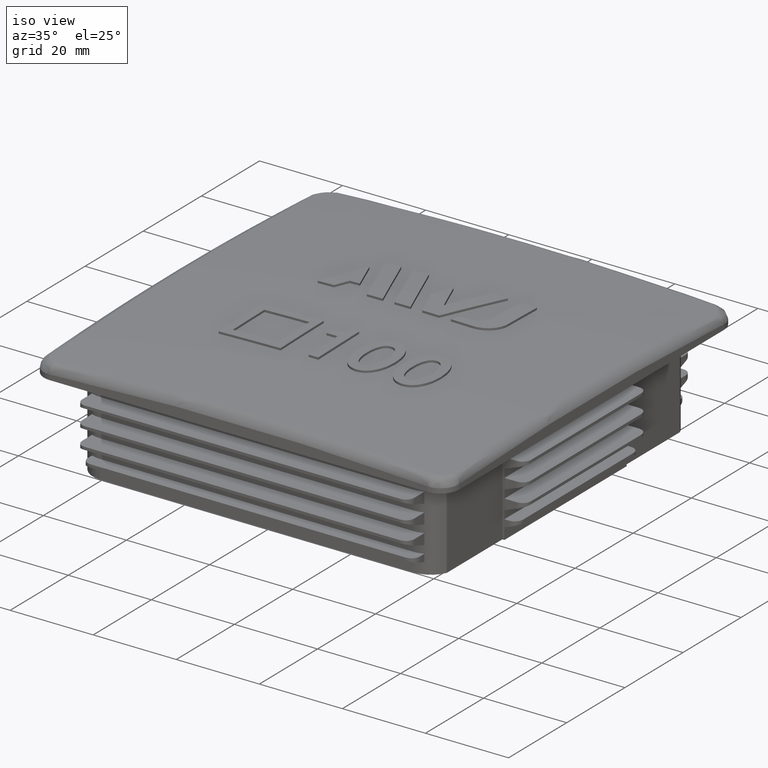
[diagram: clean part render]
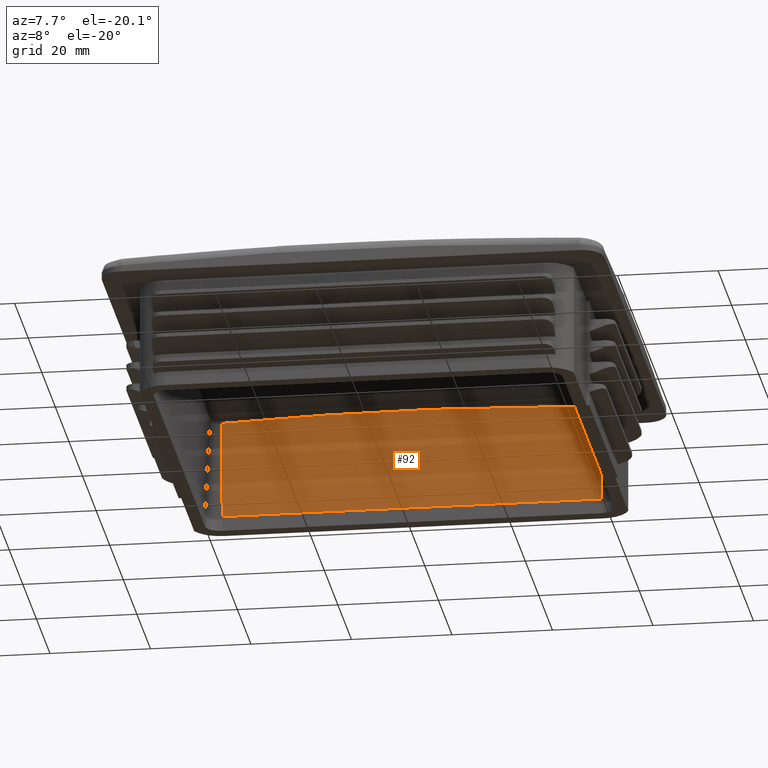
[diagram: tour spotlight — one face highlighted and labeled with its STEP entity id]
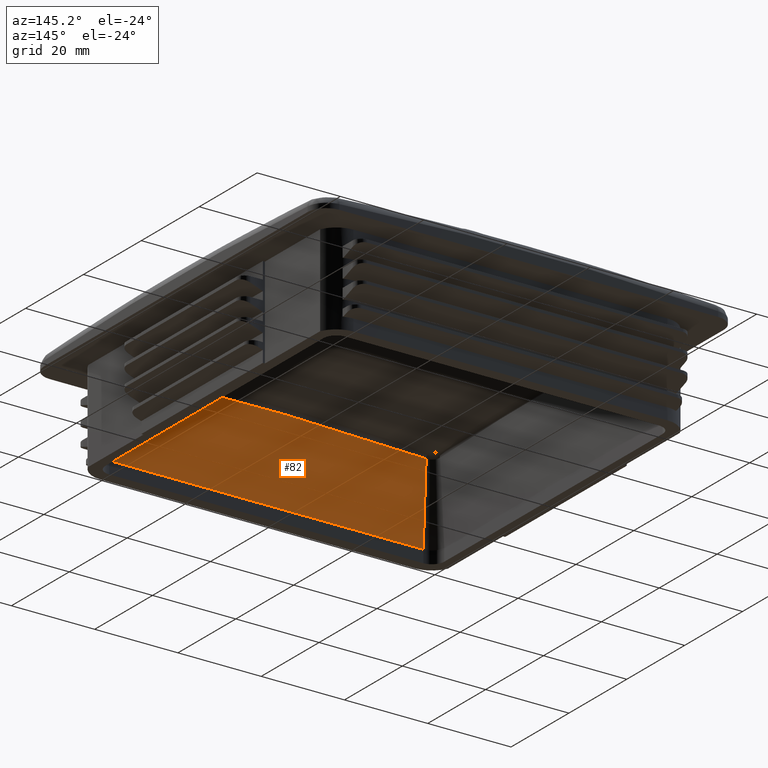
[diagram: tour spotlight — one face highlighted and labeled with its STEP entity id]
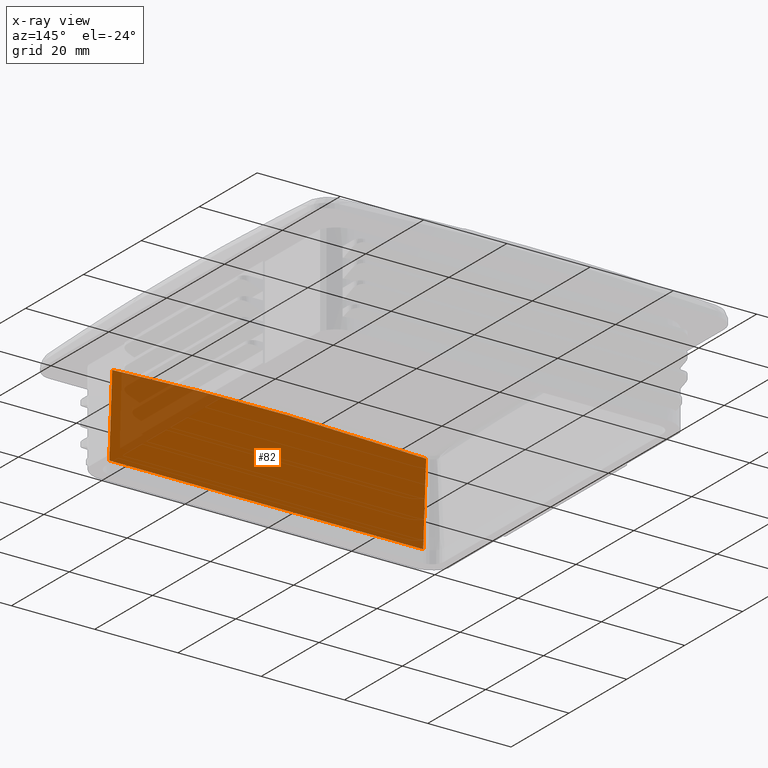
[diagram: x-ray of the same camera — body ghosted, this tour face saturated]
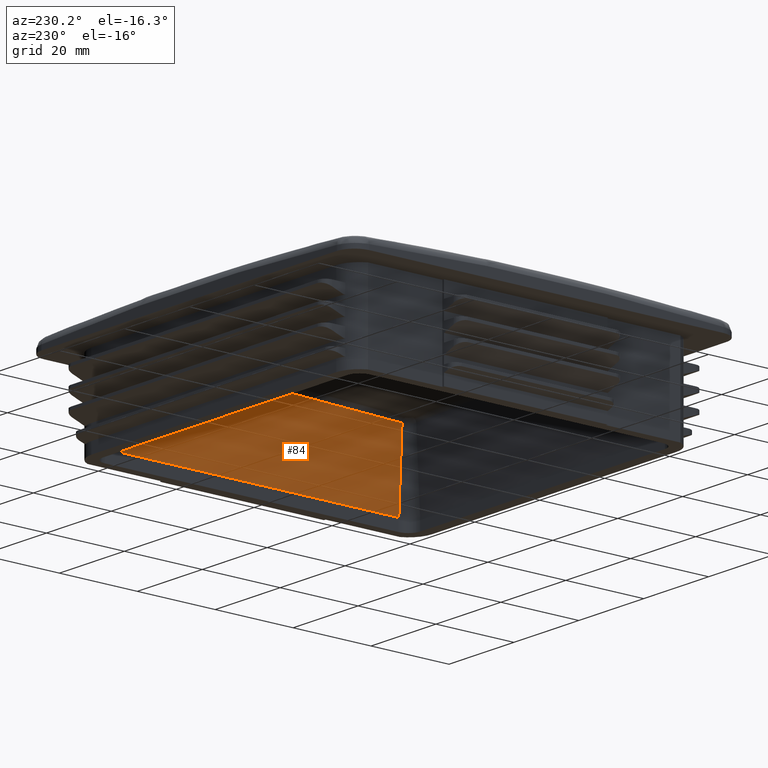
[diagram: tour spotlight — one face highlighted and labeled with its STEP entity id]
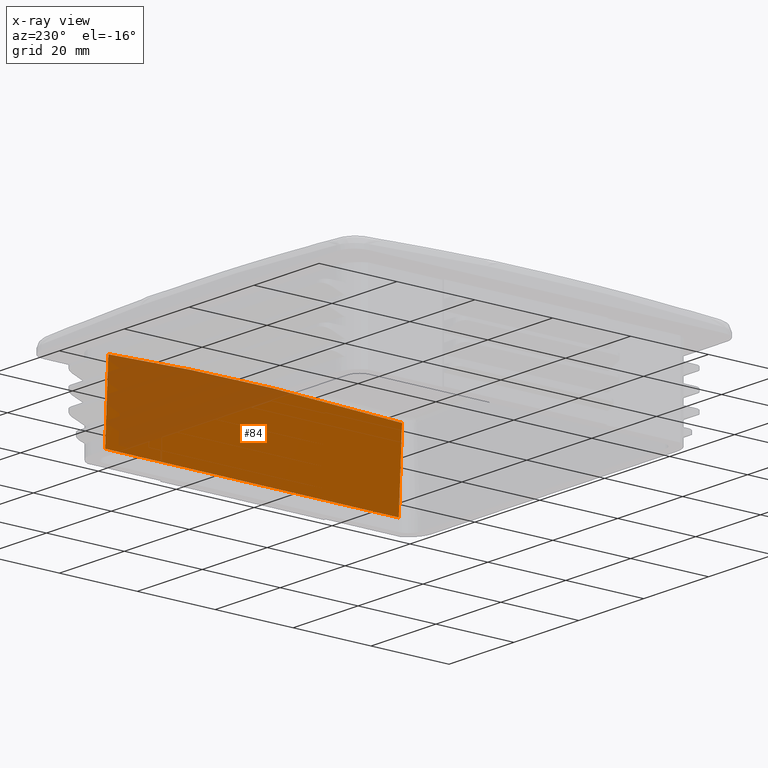
[diagram: x-ray of the same camera — body ghosted, this tour face saturated]
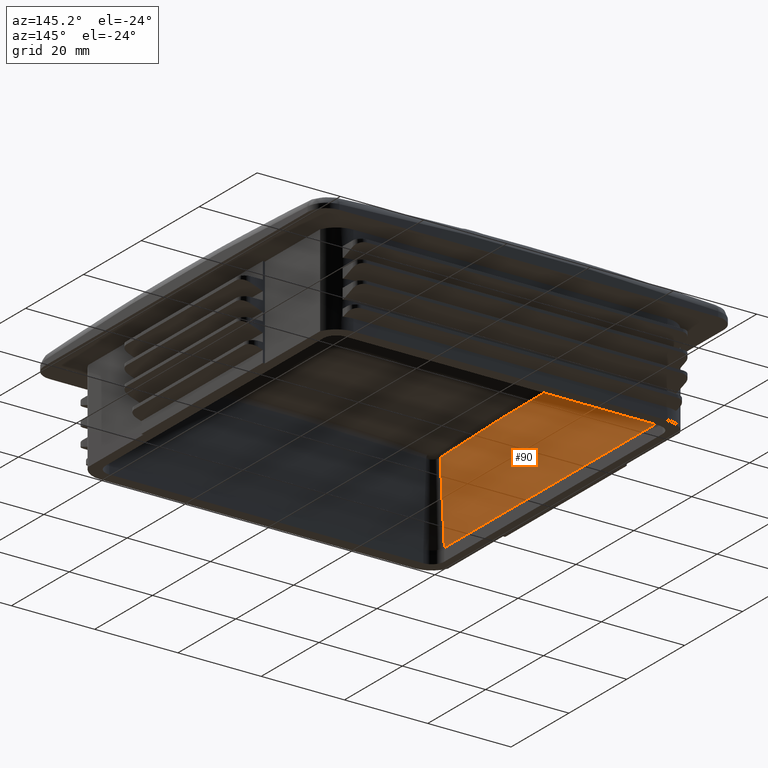
[diagram: tour spotlight — one face highlighted and labeled with its STEP entity id]
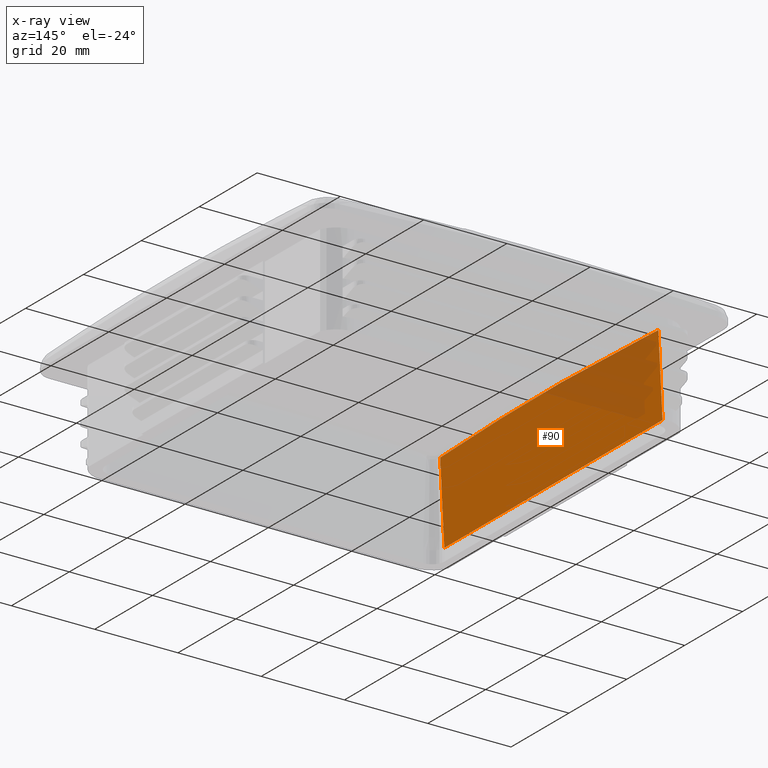
[diagram: x-ray of the same camera — body ghosted, this tour face saturated]
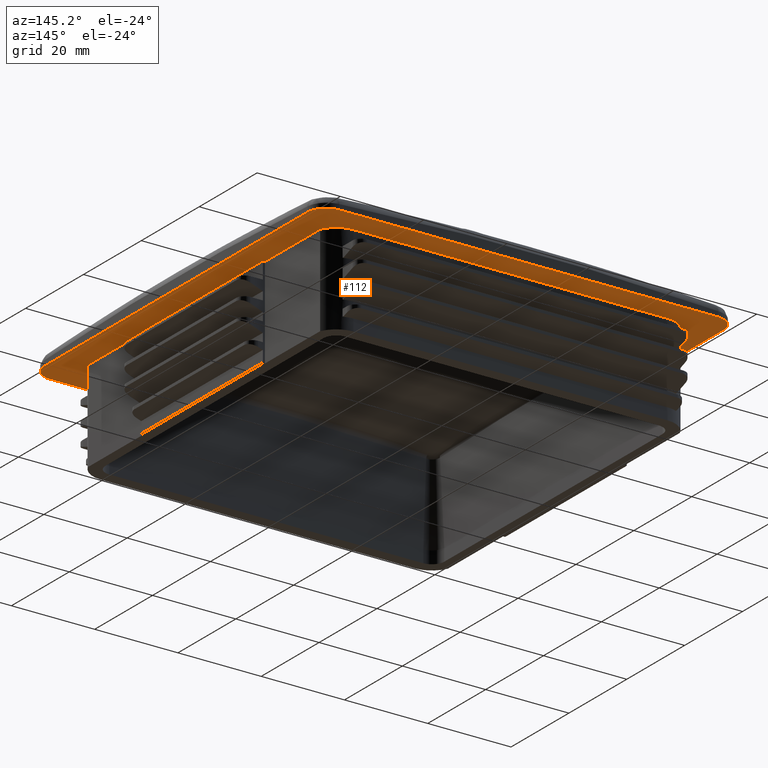
[diagram: tour spotlight — one face highlighted and labeled with its STEP entity id]
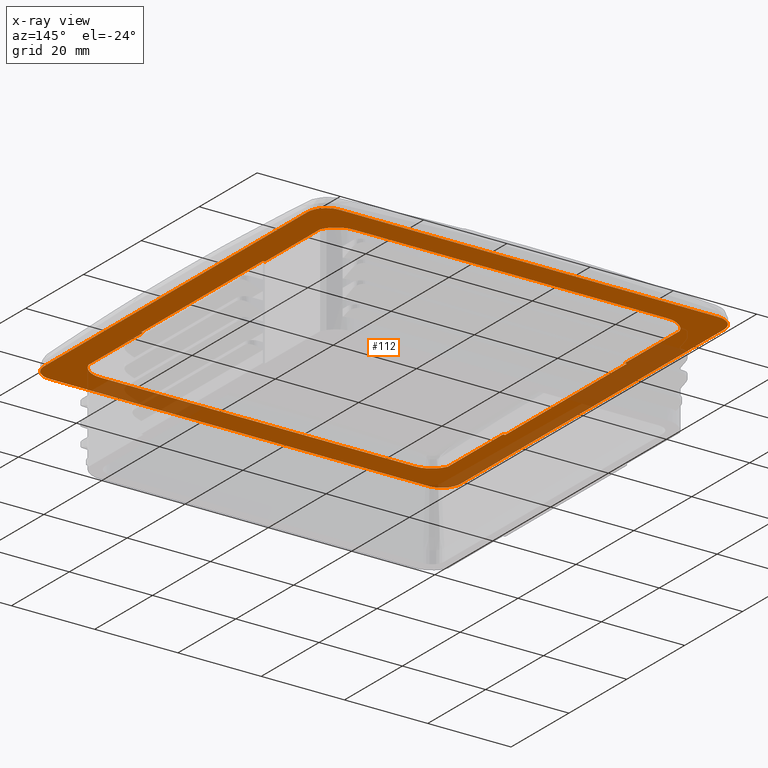
[diagram: x-ray of the same camera — body ghosted, this tour face saturated]
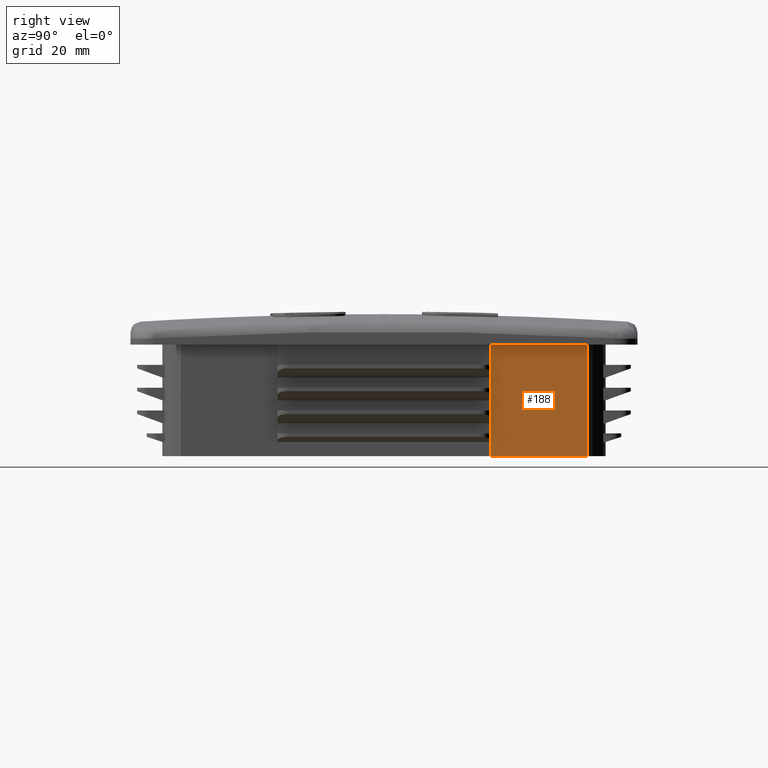
[diagram: tour spotlight — one face highlighted and labeled with its STEP entity id]
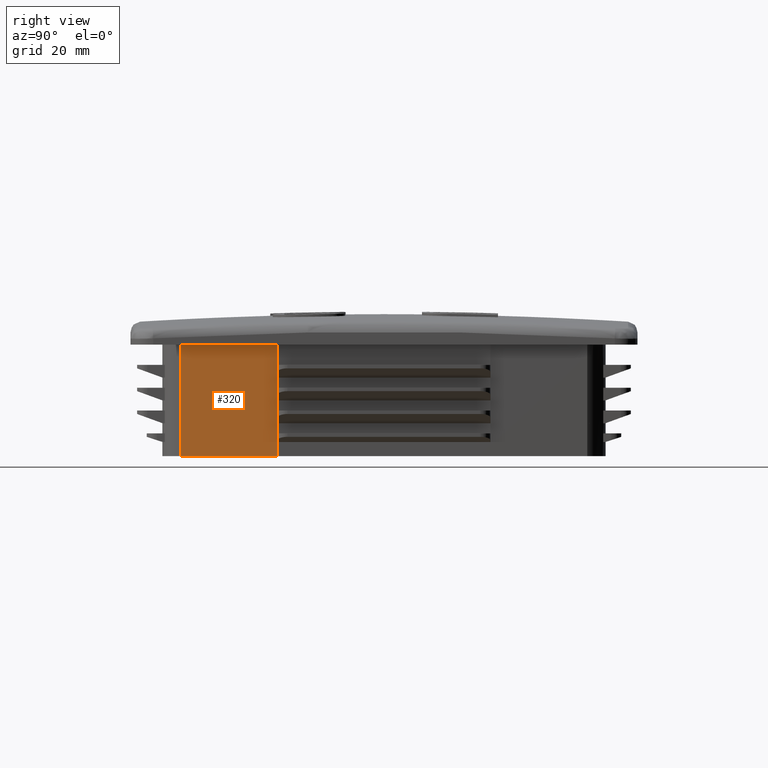
[diagram: tour spotlight — one face highlighted and labeled with its STEP entity id]
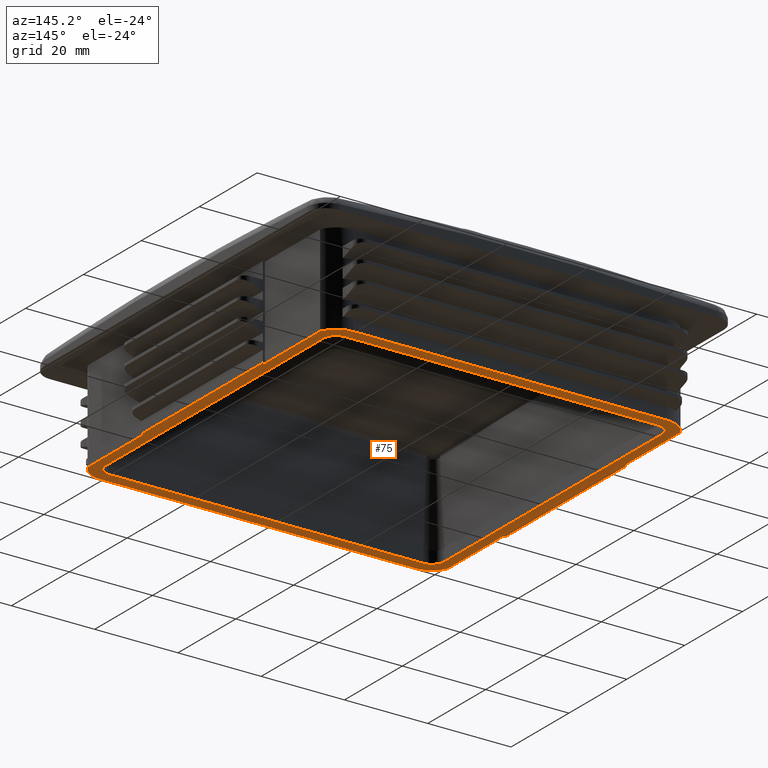
[diagram: tour spotlight — one face highlighted and labeled with its STEP entity id]
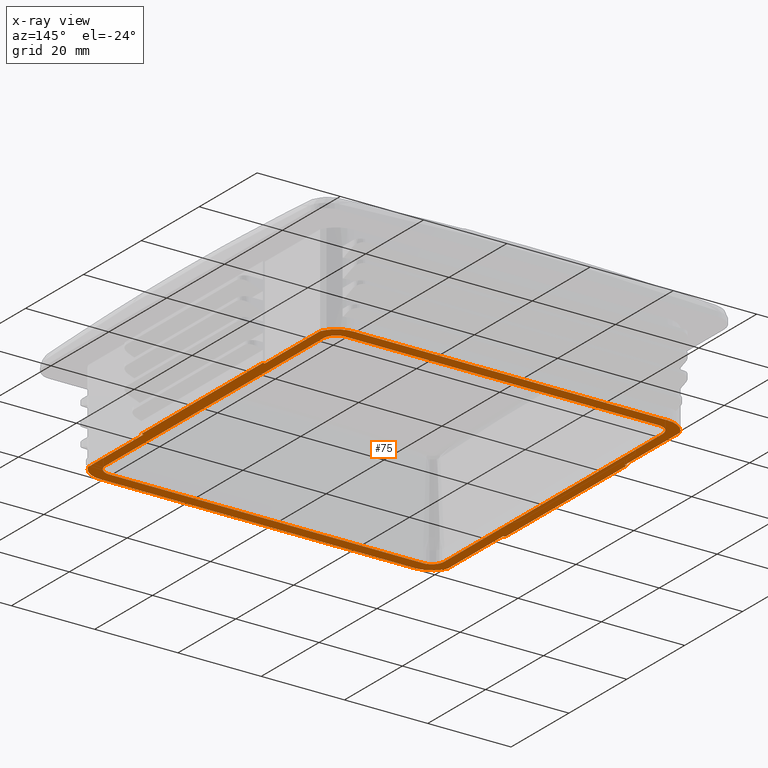
[diagram: x-ray of the same camera — body ghosted, this tour face saturated]
A machine part: a face-by-face anatomy tour. The part has 247 B-rep faces; the first image is the clean iso view, then the 8 largest visible faces are spotlighted one at a time (largest first), each with its STEP entity span.

Face 1 — auxiliary view, entity #92. In plain terms, the highlighted planar face has unit normal (0, 0.9986, 0.0523).
Definition (entity closure, byte-faithful):
#92 = ADVANCED_FACE( '', ( #359 ), #360, .F. );
#359 = FACE_OUTER_BOUND( '', #1723, .T. );
#360 = PLANE( '', #1724 );
#1723 = EDGE_LOOP( '', ( #3525, #3526, #3527, #3528 ) );
#1724 = AXIS2_PLACEMENT_3D( '', #3529, #3530, #3531 );
#3525 = ORIENTED_EDGE( '', *, *, #5481, .F. );
#3526 = ORIENTED_EDGE( '', *, *, #5484, .T. );
#3527 = ORIENTED_EDGE( '', *, *, #5488, .T. );
#3528 = ORIENTED_EDGE( '', *, *, #5489, .F. );
#3529 = CARTESIAN_POINT( '', ( -37.7000000000000, 40.7000000000000, -19.0000000000000 ) );
#3530 = DIRECTION( '', ( 2.46181187114666E-032, 0.998629534754574, 0.0523359562429438 ) );
#3531 = DIRECTION( '', ( 0.000000000000000, -0.0523359562429438, 0.998629534754574 ) );
#5481 = EDGE_CURVE( '', #6185, #6194, #6195, .T. );
#5484 = EDGE_CURVE( '', #6185, #6197, #6199, .T. );
#5488 = EDGE_CURVE( '', #6197, #6204, #6205, .T. );
#5489 = EDGE_CURVE( '', #6194, #6204, #6206, .T. );
#6185 = VERTEX_POINT( '', #7627 );
#6194 = VERTEX_POINT( '', #7693 );
#6195 = LINE( '', #7694, #7695 );
#6197 = VERTEX_POINT( '', #7697 );
#6199 = B_SPLINE_CURVE_WITH_KNOTS( '', 3, ( #7699, #7700, #7701, #7702, #7703, #7704, #7705, #7706, #7707, #7708, #7709, #7710, #7711, #7712, #7713 ), .UNSPECIFIED., .F., .F., ( 4, 2, 2, 2, 2, 2, 1, 4 ), ( 0.000000000000000, 0.0188517248806021, 0.0377034497612042, 0.0471293122015053, 0.0518422434216558, 0.0541987090317311, 0.0565551746418063, 0.0754068995224084 ), .UNSPECIFIED. );
#6204 = VERTEX_POINT( '', #7762 );
#6205 = LINE( '', #7763, #7764 );
#6206 = LINE( '', #7765, #7766 );
#7627 = CARTESIAN_POINT( '', ( 37.7000000000000, 39.6941967815033, 0.191868693092130 ) );
#7693 = CARTESIAN_POINT( '', ( 37.7000000000000, 40.7000000000000, -19.0000000000000 ) );
#7694 = CARTESIAN_POINT( '', ( 37.7000000000000, 40.7000000000000, -19.0000000000000 ) );
#7695 = VECTOR( '', #10662, 1000.00000000000 );
#7697 = CARTESIAN_POINT( '', ( -37.7000000000000, 39.6941967815033, 0.191868693092144 ) );
#7699 = CARTESIAN_POINT( '', ( 37.7000000000000, 39.6941967815033, 0.191868693092132 ) );
#7700 = CARTESIAN_POINT( '', ( 31.4195986667905, 39.6784245106408, 0.492821549296136 ) );
#7701 = CARTESIAN_POINT( '', ( 25.1381788298063, 39.6665857428325, 0.718718696060663 ) );
#7702 = CARTESIAN_POINT( '', ( 12.5732983995765, 39.6507896910031, 1.02012532014355 ) );
#7703 = CARTESIAN_POINT( '', ( 6.28983740944579, 39.6468339397685, 1.09560555015275 ) );
#7704 = CARTESIAN_POINT( '', ( -3.13688960082536, 39.6468305732879, 1.09566978643068 ) );
#7705 = CARTESIAN_POINT( '', ( -6.27938781602338, 39.6478176640867, 1.07683497197371 ) );
#7706 = CARTESIAN_POINT( '', ( -10.9935189200624, 39.6507804790705, 1.02030109428852 ) );
#7707 = CARTESIAN_POINT( '', ( -12.5649599135559, 39.6520150956088, 0.996743207364752 ) );
#7708 = CARTESIAN_POINT( '', ( -14.9222173102205, 39.6542374149322, 0.954338828589998 ) );
#7709 = CARTESIAN_POINT( '', ( -15.7079893655258, 39.6550399240451, 0.939026042514631 ) );
#7710 = CARTESIAN_POINT( '', ( -17.2795506349810, 39.6567683676661, 0.906045373525491 ) );
#7711 = CARTESIAN_POINT( '', ( -24.3512109642427, 39.6651014125010, 0.747041406004982 ) );
#7712 = CARTESIAN_POINT( '', ( -31.4195864081377, 39.6784244798550, 0.492822136722888 ) );
#7713 = CARTESIAN_POINT( '', ( -37.7000000000000, 39.6941967815033, 0.191868693092002 ) );
#7762 = CARTESIAN_POINT( '', ( -37.7000000000000, 40.7000000000000, -19.0000000000000 ) );
#7763 = CARTESIAN_POINT( '', ( -37.7000000000000, 40.7000000000000, -19.0000000000000 ) );
#7764 = VECTOR( '', #10671, 1000.00000000000 );
#7765 = CARTESIAN_POINT( '', ( 37.7000000000000, 40.7000000000000, -19.0000000000000 ) );
#7766 = VECTOR( '', #10672, 1000.00000000000 );
#10662 = DIRECTION( '', ( 1.29018093179425E-033, 0.0523359562429438, -0.998629534754574 ) );
#10671 = DIRECTION( '', ( 0.000000000000000, 0.0523359562429438, -0.998629534754574 ) );
#10672 = DIRECTION( '', ( -1.00000000000000, 0.000000000000000, 0.000000000000000 ) );

Face 2 — auxiliary view, entity #82. An x-ray twin of the same camera follows (body ghosted, this face saturated) — the face is partly hidden behind the body. In plain terms, the highlighted planar face has unit normal (-0, -0.9986, 0.0523).
Definition (entity closure, byte-faithful):
#82 = ADVANCED_FACE( '', ( #339 ), #340, .F. );
#339 = FACE_OUTER_BOUND( '', #1139, .T. );
#340 = PLANE( '', #1140 );
#1139 = EDGE_LOOP( '', ( #3470, #3471, #3472, #3473 ) );
#1140 = AXIS2_PLACEMENT_3D( '', #3474, #3475, #3476 );
#3470 = ORIENTED_EDGE( '', *, *, #5467, .F. );
#3471 = ORIENTED_EDGE( '', *, *, #5454, .T. );
#3472 = ORIENTED_EDGE( '', *, *, #5468, .T. );
#3473 = ORIENTED_EDGE( '', *, *, #5469, .F. );
#3474 = CARTESIAN_POINT( '', ( -37.7000000000000, -40.7000000000000, -19.0000000000000 ) );
#3475 = DIRECTION( '', ( -2.46181187114666E-032, -0.998629534754574, 0.0523359562429438 ) );
#3476 = DIRECTION( '', ( 0.000000000000000, -0.0523359562429438, -0.998629534754574 ) );
#5454 = EDGE_CURVE( '', #6145, #6150, #6152, .T. );
#5467 = EDGE_CURVE( '', #6145, #6172, #6173, .T. );
#5468 = EDGE_CURVE( '', #6150, #6174, #6175, .T. );
#5469 = EDGE_CURVE( '', #6172, #6174, #6176, .T. );
#6145 = VERTEX_POINT( '', #7253 );
#6150 = VERTEX_POINT( '', #7275 );
#6152 = B_SPLINE_CURVE_WITH_KNOTS( '', 3, ( #7277, #7278, #7279, #7280, #7281, #7282, #7283, #7284, #7285, #7286, #7287, #7288, #7289, #7290, #7291 ), .UNSPECIFIED., .F., .F., ( 4, 2, 2, 2, 2, 2, 1, 4 ), ( 0.000000000000000, 0.0188517248806021, 0.0377034497612042, 0.0471293122015052, 0.0518422434216557, 0.0541987090317310, 0.0565551746418063, 0.0754068995224084 ), .UNSPECIFIED. );
#6172 = VERTEX_POINT( '', #7566 );
#6173 = LINE( '', #7567, #7568 );
#6174 = VERTEX_POINT( '', #7569 );
#6175 = LINE( '', #7570, #7571 );
#6176 = LINE( '', #7572, #7573 );
#7253 = CARTESIAN_POINT( '', ( -37.7000000000000, -39.6941967815033, 0.191868693092127 ) );
#7275 = CARTESIAN_POINT( '', ( 37.7000000000000, -39.6941967815034, 0.191868693092109 ) );
#7277 = CARTESIAN_POINT( '', ( -37.7000000000000, -39.6941967815033, 0.191868693092130 ) );
#7278 = CARTESIAN_POINT( '', ( -31.4195986667905, -39.6784245106408, 0.492821549296134 ) );
#7279 = CARTESIAN_POINT( '', ( -25.1381788298063, -39.6665857428325, 0.718718696060662 ) );
#7280 = CARTESIAN_POINT( '', ( -12.5732983995766, -39.6507896910031, 1.02012532014355 ) );
#7281 = CARTESIAN_POINT( '', ( -6.28983740944584, -39.6468339397686, 1.09560555015287 ) );
#7282 = CARTESIAN_POINT( '', ( 3.13688960082532, -39.6468305732879, 1.09566978643079 ) );
#7283 = CARTESIAN_POINT( '', ( 6.27938781602334, -39.6478176640868, 1.07683497197371 ) );
#7284 = CARTESIAN_POINT( '', ( 10.9935189200624, -39.6507804790705, 1.02030109428852 ) );
#7285 = CARTESIAN_POINT( '', ( 12.5649599135559, -39.6520150956088, 0.996743207364754 ) );
#7286 = CARTESIAN_POINT( '', ( 14.9222173102205, -39.6542374149322, 0.954338828590000 ) );
#7287 = CARTESIAN_POINT( '', ( 15.7079893655258, -39.6550399240451, 0.939026042514633 ) );
#7288 = CARTESIAN_POINT( '', ( 17.2795506349810, -39.6567683676661, 0.906045373525494 ) );
#7289 = CARTESIAN_POINT( '', ( 24.3512109642426, -39.6651014125010, 0.747041406004846 ) );
#7290 = CARTESIAN_POINT( '', ( 31.4195864081376, -39.6784244798550, 0.492822136723003 ) );
#7291 = CARTESIAN_POINT( '', ( 37.7000000000000, -39.6941967815033, 0.191868693092116 ) );
#7566 = CARTESIAN_POINT( '', ( -37.7000000000000, -40.7000000000000, -19.0000000000000 ) );
#7567 = CARTESIAN_POINT( '', ( -37.7000000000000, -40.7000000000000, -19.0000000000000 ) );
#7568 = VECTOR( '', #10643, 1000.00000000000 );
#7569 = CARTESIAN_POINT( '', ( 37.7000000000000, -40.7000000000000, -19.0000000000000 ) );
#7570 = CARTESIAN_POINT( '', ( 37.7000000000000, -40.7000000000000, -19.0000000000000 ) );
#7571 = VECTOR( '', #10644, 1000.00000000000 );
#7572 = CARTESIAN_POINT( '', ( -37.7000000000000, -40.7000000000000, -19.0000000000000 ) );
#7573 = VECTOR( '', #10645, 1000.00000000000 );
#10643 = DIRECTION( '', ( -1.29018093179425E-033, -0.0523359562429438, -0.998629534754574 ) );
#10644 = DIRECTION( '', ( 0.000000000000000, -0.0523359562429438, -0.998629534754574 ) );
#10645 = DIRECTION( '', ( 1.00000000000000, 0.000000000000000, 0.000000000000000 ) );

Face 3 — auxiliary view, entity #84. An x-ray twin of the same camera follows (body ghosted, this face saturated) — the face is partly hidden behind the body. In plain terms, the highlighted planar face has unit normal (0.9986, -0, 0.0523).
Definition (entity closure, byte-faithful):
#84 = ADVANCED_FACE( '', ( #343 ), #344, .F. );
#343 = FACE_OUTER_BOUND( '', #1299, .T. );
#344 = PLANE( '', #1300 );
#1299 = EDGE_LOOP( '', ( #3481, #3482, #3483, #3484 ) );
#1300 = AXIS2_PLACEMENT_3D( '', #3485, #3486, #3487 );
#3481 = ORIENTED_EDGE( '', *, *, #5472, .F. );
#3482 = ORIENTED_EDGE( '', *, *, #5459, .T. );
#3483 = ORIENTED_EDGE( '', *, *, #5473, .T. );
#3484 = ORIENTED_EDGE( '', *, *, #5474, .F. );
#3485 = CARTESIAN_POINT( '', ( 40.7000000000000, -40.7000000000000, -19.0000000000000 ) );
#3486 = DIRECTION( '', ( 0.998629534754574, -2.46181187114666E-032, 0.0523359562429438 ) );
#3487 = DIRECTION( '', ( 0.0523359562429438, 0.000000000000000, -0.998629534754574 ) );
#5459 = EDGE_CURVE( '', #6154, #6159, #6161, .T. );
#5472 = EDGE_CURVE( '', #6154, #6180, #6181, .T. );
#5473 = EDGE_CURVE( '', #6159, #6182, #6183, .T. );
#5474 = EDGE_CURVE( '', #6180, #6182, #6184, .T. );
#6154 = VERTEX_POINT( '', #7293 );
#6159 = VERTEX_POINT( '', #7377 );
#6161 = B_SPLINE_CURVE_WITH_KNOTS( '', 3, ( #7379, #7380, #7381, #7382, #7383, #7384, #7385, #7386, #7387, #7388, #7389, #7390, #7391, #7392, #7393 ), .UNSPECIFIED., .F., .F., ( 4, 2, 2, 2, 2, 2, 1, 4 ), ( 0.000000000000000, 0.0188517248806021, 0.0377034497612042, 0.0471293122015052, 0.0518422434216557, 0.0541987090317310, 0.0565551746418063, 0.0754068995224084 ), .UNSPECIFIED. );
#6180 = VERTEX_POINT( '', #7619 );
#6181 = LINE( '', #7620, #7621 );
#6182 = VERTEX_POINT( '', #7622 );
#6183 = LINE( '', #7623, #7624 );
#6184 = LINE( '', #7625, #7626 );
#7293 = CARTESIAN_POINT( '', ( 39.6941967815033, -37.7000000000000, 0.191868693092127 ) );
#7377 = CARTESIAN_POINT( '', ( 39.6941967815033, 37.7000000000000, 0.191868693092144 ) );
#7379 = CARTESIAN_POINT( '', ( 39.6941967815033, -37.7000000000000, 0.191868693092130 ) );
#7380 = CARTESIAN_POINT( '', ( 39.6784245106408, -31.4195986667905, 0.492821549296134 ) );
#7381 = CARTESIAN_POINT( '', ( 39.6665857428325, -25.1381788298063, 0.718718696060661 ) );
#7382 = CARTESIAN_POINT( '', ( 39.6507896910031, -12.5732983995765, 1.02012532014355 ) );
#7383 = CARTESIAN_POINT( '', ( 39.6468339397685, -6.28983740944583, 1.09560555015286 ) );
#7384 = CARTESIAN_POINT( '', ( 39.6468305732879, 3.13688960082533, 1.09566978643079 ) );
#7385 = CARTESIAN_POINT( '', ( 39.6478176640867, 6.27938781602334, 1.07683497197371 ) );
#7386 = CARTESIAN_POINT( '', ( 39.6507804790705, 10.9935189200624, 1.02030109428852 ) );
#7387 = CARTESIAN_POINT( '', ( 39.6520150956088, 12.5649599135559, 0.996743207364750 ) );
#7388 = CARTESIAN_POINT( '', ( 39.6542374149322, 14.9222173102205, 0.954338828589997 ) );
#7389 = CARTESIAN_POINT( '', ( 39.6550399240451, 15.7079893655258, 0.939026042514630 ) );
#7390 = CARTESIAN_POINT( '', ( 39.6567683676661, 17.2795506349810, 0.906045373525490 ) );
#7391 = CARTESIAN_POINT( '', ( 39.6651014125010, 24.3512109642426, 0.747041406004981 ) );
#7392 = CARTESIAN_POINT( '', ( 39.6784244798550, 31.4195864081376, 0.492822136722887 ) );
#7393 = CARTESIAN_POINT( '', ( 39.6941967815033, 37.7000000000000, 0.191868693092000 ) );
#7619 = CARTESIAN_POINT( '', ( 40.7000000000000, -37.7000000000000, -19.0000000000000 ) );
#7620 = CARTESIAN_POINT( '', ( 40.7000000000000, -37.7000000000000, -19.0000000000000 ) );
#7621 = VECTOR( '', #10649, 1000.00000000000 );
#7622 = CARTESIAN_POINT( '', ( 40.7000000000000, 37.7000000000000, -19.0000000000000 ) );
#7623 = CARTESIAN_POINT( '', ( 40.7000000000000, 37.7000000000000, -19.0000000000000 ) );
#7624 = VECTOR( '', #10650, 1000.00000000000 );
#7625 = CARTESIAN_POINT( '', ( 40.7000000000000, -37.7000000000000, -19.0000000000000 ) );
#7626 = VECTOR( '', #10651, 1000.00000000000 );
#10649 = DIRECTION( '', ( 0.0523359562429438, -1.29018093179425E-033, -0.998629534754574 ) );
#10650 = DIRECTION( '', ( 0.0523359562429438, 0.000000000000000, -0.998629534754574 ) );
#10651 = DIRECTION( '', ( 0.000000000000000, 1.00000000000000, 0.000000000000000 ) );

Face 4 — auxiliary view, entity #90. An x-ray twin of the same camera follows (body ghosted, this face saturated) — the face is partly hidden behind the body. In plain terms, the highlighted planar face has unit normal (-0.9986, 0, 0.0523).
Definition (entity closure, byte-faithful):
#90 = ADVANCED_FACE( '', ( #355 ), #356, .F. );
#355 = FACE_OUTER_BOUND( '', #1563, .T. );
#356 = PLANE( '', #1564 );
#1563 = EDGE_LOOP( '', ( #3514, #3515, #3516, #3517 ) );
#1564 = AXIS2_PLACEMENT_3D( '', #3518, #3519, #3520 );
#3514 = ORIENTED_EDGE( '', *, *, #5485, .F. );
#3515 = ORIENTED_EDGE( '', *, *, #5480, .T. );
#3516 = ORIENTED_EDGE( '', *, *, #5477, .T. );
#3517 = ORIENTED_EDGE( '', *, *, #5486, .F. );
#3518 = CARTESIAN_POINT( '', ( -40.7000000000000, -40.7000000000000, -19.0000000000000 ) );
#3519 = DIRECTION( '', ( -0.998629534754574, 2.46181187114666E-032, 0.0523359562429438 ) );
#3520 = DIRECTION( '', ( 0.0523359562429438, 0.000000000000000, 0.998629534754574 ) );
#5477 = EDGE_CURVE( '', #6177, #6188, #6189, .T. );
#5480 = EDGE_CURVE( '', #6191, #6177, #6193, .T. );
#5485 = EDGE_CURVE( '', #6191, #6200, #6201, .T. );
#5486 = EDGE_CURVE( '', #6200, #6188, #6202, .T. );
#6177 = VERTEX_POINT( '', #7574 );
#6188 = VERTEX_POINT( '', #7672 );
#6189 = LINE( '', #7673, #7674 );
#6191 = VERTEX_POINT( '', #7676 );
#6193 = B_SPLINE_CURVE_WITH_KNOTS( '', 3, ( #7678, #7679, #7680, #7681, #7682, #7683, #7684, #7685, #7686, #7687, #7688, #7689, #7690, #7691, #7692 ), .UNSPECIFIED., .F., .F., ( 4, 2, 2, 2, 2, 2, 1, 4 ), ( 0.000000000000000, 0.0188517248806021, 0.0377034497612042, 0.0471293122015053, 0.0518422434216558, 0.0541987090317311, 0.0565551746418063, 0.0754068995224084 ), .UNSPECIFIED. );
#6200 = VERTEX_POINT( '', #7714 );
#6201 = LINE( '', #7715, #7716 );
#6202 = LINE( '', #7717, #7718 );
#7574 = CARTESIAN_POINT( '', ( -39.6941967815033, -37.7000000000000, 0.191868693092144 ) );
#7672 = CARTESIAN_POINT( '', ( -40.7000000000000, -37.7000000000000, -19.0000000000000 ) );
#7673 = CARTESIAN_POINT( '', ( -40.7000000000000, -37.7000000000000, -19.0000000000000 ) );
#7674 = VECTOR( '', #10655, 1000.00000000000 );
#7676 = CARTESIAN_POINT( '', ( -39.6941967815033, 37.7000000000000, 0.191868693092127 ) );
#7678 = CARTESIAN_POINT( '', ( -39.6941967815033, 37.7000000000000, 0.191868693092130 ) );
#7679 = CARTESIAN_POINT( '', ( -39.6784245106408, 31.4195986667905, 0.492821549296135 ) );
#7680 = CARTESIAN_POINT( '', ( -39.6665857428325, 25.1381788298063, 0.718718696060662 ) );
#7681 = CARTESIAN_POINT( '', ( -39.6507896910031, 12.5732983995765, 1.02012532014355 ) );
#7682 = CARTESIAN_POINT( '', ( -39.6468339397685, 6.28983740944579, 1.09560555015276 ) );
#7683 = CARTESIAN_POINT( '', ( -39.6468305732879, -3.13688960082536, 1.09566978643068 ) );
#7684 = CARTESIAN_POINT( '', ( -39.6478176640868, -6.27938781602338, 1.07683497197371 ) );
#7685 = CARTESIAN_POINT( '', ( -39.6507804790705, -10.9935189200624, 1.02030109428852 ) );
#7686 = CARTESIAN_POINT( '', ( -39.6520150956088, -12.5649599135560, 0.996743207364755 ) );
#7687 = CARTESIAN_POINT( '', ( -39.6542374149323, -14.9222173102205, 0.954338828590001 ) );
#7688 = CARTESIAN_POINT( '', ( -39.6550399240451, -15.7079893655258, 0.939026042514634 ) );
#7689 = CARTESIAN_POINT( '', ( -39.6567683676661, -17.2795506349810, 0.906045373525494 ) );
#7690 = CARTESIAN_POINT( '', ( -39.6651014125010, -24.3512109642427, 0.747041406004972 ) );
#7691 = CARTESIAN_POINT( '', ( -39.6784244798550, -31.4195864081377, 0.492822136723005 ) );
#7692 = CARTESIAN_POINT( '', ( -39.6941967815033, -37.7000000000000, 0.191868693092118 ) );
#7714 = CARTESIAN_POINT( '', ( -40.7000000000000, 37.7000000000000, -19.0000000000000 ) );
#7715 = CARTESIAN_POINT( '', ( -40.7000000000000, 37.7000000000000, -19.0000000000000 ) );
#7716 = VECTOR( '', #10669, 1000.00000000000 );
#7717 = CARTESIAN_POINT( '', ( -40.7000000000000, 37.7000000000000, -19.0000000000000 ) );
#7718 = VECTOR( '', #10670, 1000.00000000000 );
#10655 = DIRECTION( '', ( -0.0523359562429438, 0.000000000000000, -0.998629534754574 ) );
#10669 = DIRECTION( '', ( -0.0523359562429438, 1.29018093179425E-033, -0.998629534754574 ) );
#10670 = DIRECTION( '', ( 0.000000000000000, -1.00000000000000, 0.000000000000000 ) );

Face 5 — auxiliary view, entity #112. An x-ray twin of the same camera follows (body ghosted, this face saturated) — the face is partly hidden behind the body. In plain terms, the highlighted planar face has unit normal (0, 0, 1).
Definition (entity closure, byte-faithful):
#112 = ADVANCED_FACE( '', ( #400, #401 ), #402, .F. );
#400 = FACE_BOUND( '', #2675, .T. );
#401 = FACE_OUTER_BOUND( '', #2676, .T. );
#402 = PLANE( '', #2677 );
#2675 = EDGE_LOOP( '', ( #3664, #3665, #3666, #3667, #3668, #3669, #3670, #3671, #3672, #3673, #3674, #3675, #3676, #3677, #3678, #3679 ) );
#2676 = EDGE_LOOP( '', ( #3680, #3681, #3682, #3683, #3684, #3685, #3686, #3687 ) );
#2677 = AXIS2_PLACEMENT_3D( '', #3688, #3689, #3690 );
#3664 = ORIENTED_EDGE( '', *, *, #5493, .T. );
#3665 = ORIENTED_EDGE( '', *, *, #5449, .T. );
#3666 = ORIENTED_EDGE( '', *, *, #5432, .T. );
#3667 = ORIENTED_EDGE( '', *, *, #5552, .T. );
#3668 = ORIENTED_EDGE( '', *, *, #5553, .T. );
#3669 = ORIENTED_EDGE( '', *, *, #5554, .T. );
#3670 = ORIENTED_EDGE( '', *, *, #5555, .T. );
#3671 = ORIENTED_EDGE( '', *, *, #5556, .T. );
#3672 = ORIENTED_EDGE( '', *, *, #5557, .T. );
#3673 = ORIENTED_EDGE( '', *, *, #5558, .T. );
#3674 = ORIENTED_EDGE( '', *, *, #5559, .T. );
#3675 = ORIENTED_EDGE( '', *, *, #5560, .T. );
#3676 = ORIENTED_EDGE( '', *, *, #5561, .T. );
#3677 = ORIENTED_EDGE( '', *, *, #5562, .T. );
#3678 = ORIENTED_EDGE( '', *, *, #5563, .T. );
#3679 = ORIENTED_EDGE( '', *, *, #5564, .T. );
#3680 = ORIENTED_EDGE( '', *, *, #5532, .F. );
#3681 = ORIENTED_EDGE( '', *, *, #5565, .F. );
#3682 = ORIENTED_EDGE( '', *, *, #5526, .F. );
#3683 = ORIENTED_EDGE( '', *, *, #5537, .F. );
#3684 = ORIENTED_EDGE( '', *, *, #5547, .F. );
#3685 = ORIENTED_EDGE( '', *, *, #5566, .F. );
#3686 = ORIENTED_EDGE( '', *, *, #5551, .F. );
#3687 = ORIENTED_EDGE( '', *, *, #5542, .F. );
#3688 = CARTESIAN_POINT( '', ( -68.8500000000000, 1.29064550871818E-031, 2.10785368651677E-015 ) );
#3689 = DIRECTION( '', ( 6.12303176911189E-017, 6.12303176911189E-017, 1.00000000000000 ) );
#3690 = DIRECTION( '', ( 1.00000000000000, 0.000000000000000, -6.12303176911189E-017 ) );
#5432 = EDGE_CURVE( '', #6110, #6108, #6111, .T. );
#5449 = EDGE_CURVE( '', #6142, #6110, #6143, .T. );
#5493 = EDGE_CURVE( '', #6212, #6142, #6213, .T. );
#5526 = EDGE_CURVE( '', #6272, #6270, #6274, .T. );
#5532 = EDGE_CURVE( '', #6282, #6280, #6284, .T. );
#5537 = EDGE_CURVE( '', #6290, #6272, #6292, .T. );
#5542 = EDGE_CURVE( '', #6280, #6298, #6300, .T. );
#5547 = EDGE_CURVE( '', #6306, #6290, #6308, .T. );
#5551 = EDGE_CURVE( '', #6298, #6311, #6313, .T. );
#5552 = EDGE_CURVE( '', #6108, #6314, #6315, .T. );
#5553 = EDGE_CURVE( '', #6314, #6316, #6317, .T. );
#5554 = EDGE_CURVE( '', #6316, #6318, #6319, .T. );
#5555 = EDGE_CURVE( '', #6318, #6320, #6321, .T. );
#5556 = EDGE_CURVE( '', #6320, #6322, #6323, .T. );
#5557 = EDGE_CURVE( '', #6322, #6324, #6325, .T. );
#5558 = EDGE_CURVE( '', #6324, #6326, #6327, .T. );
#5559 = EDGE_CURVE( '', #6326, #6328, #6329, .T. );
#5560 = EDGE_CURVE( '', #6328, #6330, #6331, .T. );
#5561 = EDGE_CURVE( '', #6330, #6332, #6333, .T. );
#5562 = EDGE_CURVE( '', #6332, #6334, #6335, .T. );
#5563 = EDGE_CURVE( '', #6334, #6336, #6337, .T. );
#5564 = EDGE_CURVE( '', #6336, #6212, #6338, .T. );
#5565 = EDGE_CURVE( '', #6270, #6282, #6339, .T. );
#5566 = EDGE_CURVE( '', #6311, #6306, #6340, .T. );
#6108 = VERTEX_POINT( '', #7196 );
#6110 = VERTEX_POINT( '', #7199 );
#6111 = LINE( '', #7200, #7201 );
#6142 = VERTEX_POINT( '', #7248 );
#6143 = LINE( '', #7249, #7250 );
#6212 = VERTEX_POINT( '', #7906 );
#6213 = CIRCLE( '', #7907, 5.99999999999999 );
#6270 = VERTEX_POINT( '', #8194 );
#6272 = VERTEX_POINT( '', #8197 );
#6274 = CIRCLE( '', #8200, 4.50000000000000 );
#6280 = VERTEX_POINT( '', #8244 );
#6282 = VERTEX_POINT( '', #8247 );
#6284 = CIRCLE( '', #8250, 4.50000000000000 );
#6290 = VERTEX_POINT( '', #8294 );
#6292 = LINE( '', #8297, #8298 );
#6298 = VERTEX_POINT( '', #8394 );
#6300 = LINE( '', #8397, #8398 );
#6306 = VERTEX_POINT( '', #8494 );
#6308 = CIRCLE( '', #8497, 4.50000000000000 );
#6311 = VERTEX_POINT( '', #8538 );
#6313 = CIRCLE( '', #8541, 4.50000000000000 );
#6314 = VERTEX_POINT( '', #8542 );
#6315 = LINE( '', #8543, #8544 );
#6316 = VERTEX_POINT( '', #8545 );
#6317 = LINE( '', #8546, #8547 );
#6318 = VERTEX_POINT( '', #8548 );
#6319 = LINE( '', #8549, #8550 );
#6320 = VERTEX_POINT( '', #8551 );
#6321 = CIRCLE( '', #8552, 6.00000000000000 );
#6322 = VERTEX_POINT( '', #8553 );
#6323 = LINE( '', #8554, #8555 );
#6324 = VERTEX_POINT( '', #8556 );
#6325 = CIRCLE( '', #8557, 6.00000000000000 );
#6326 = VERTEX_POINT( '', #8558 );
#6327 = LINE( '', #8559, #8560 );
#6328 = VERTEX_POINT( '', #8561 );
#6329 = LINE( '', #8562, #8563 );
#6330 = VERTEX_POINT( '', #8564 );
#6331 = LINE( '', #8565, #8566 );
#6332 = VERTEX_POINT( '', #8567 );
#6333 = LINE( '', #8568, #8569 );
#6334 = VERTEX_POINT( '', #8570 );
#6335 = LINE( '', #8571, #8572 );
#6336 = VERTEX_POINT( '', #8573 );
#6337 = CIRCLE( '', #8574, 6.00000000000001 );
#6338 = LINE( '', #8575, #8576 );
#6339 = LINE( '', #8577, #8578 );
#6340 = LINE( '', #8579, #8580 );
#7196 = CARTESIAN_POINT( '', ( -43.7000000000000, 21.0000000000000, 0.000000000000000 ) );
#7199 = CARTESIAN_POINT( '', ( -43.2000000000000, 21.0000000000000, 0.000000000000000 ) );
#7200 = CARTESIAN_POINT( '', ( -43.2000000000000, 21.0000000000000, 0.000000000000000 ) );
#7201 = VECTOR( '', #10612, 1000.00000000000 );
#7248 = CARTESIAN_POINT( '', ( -43.2000000000000, 40.0979157616564, 0.000000000000000 ) );
#7249 = CARTESIAN_POINT( '', ( -43.2000000000000, 40.0979157616564, 0.000000000000000 ) );
#7250 = VECTOR( '', #10629, 1000.00000000000 );
#7906 = CARTESIAN_POINT( '', ( -37.7000000000000, 43.7000000000000, 0.000000000000000 ) );
#7907 = AXIS2_PLACEMENT_3D( '', #10676, #10677, #10678 );
#8194 = CARTESIAN_POINT( '', ( -50.0000000000000, 45.5000000000000, -1.83231725690673E-015 ) );
#8197 = CARTESIAN_POINT( '', ( -45.5000000000000, 50.0000000000000, -2.75536429610035E-016 ) );
#8200 = AXIS2_PLACEMENT_3D( '', #10729, #10730, #10731 );
#8244 = CARTESIAN_POINT( '', ( -45.5000000000000, -50.0000000000000, 3.73964165298509E-015 ) );
#8247 = CARTESIAN_POINT( '', ( -50.0000000000000, -45.5000000000000, 0.000000000000000 ) );
#8250 = AXIS2_PLACEMENT_3D( '', #10737, #10738, #10739 );
#8294 = CARTESIAN_POINT( '', ( 45.5000000000000, 50.0000000000000, -7.95534902601862E-015 ) );
#8297 = CARTESIAN_POINT( '', ( -68.8500000000000, 50.0000000000000, -9.53662198039177E-016 ) );
#8298 = VECTOR( '', #10744, 1000.00000000000 );
#8394 = CARTESIAN_POINT( '', ( 45.5000000000000, -50.0000000000000, 2.75536429610035E-016 ) );
#8397 = CARTESIAN_POINT( '', ( -68.8500000000000, -50.0000000000000, 5.16936957107271E-015 ) );
#8398 = VECTOR( '', #10749, 1000.00000000000 );
#8494 = CARTESIAN_POINT( '', ( 50.0000000000000, 45.5000000000000, -2.75536429610035E-016 ) );
#8497 = AXIS2_PLACEMENT_3D( '', #10754, #10755, #10756 );
#8538 = CARTESIAN_POINT( '', ( 50.0000000000000, -45.5000000000000, -2.38339011612680E-015 ) );
#8541 = AXIS2_PLACEMENT_3D( '', #10758, #10759, #10760 );
#8542 = CARTESIAN_POINT( '', ( -43.7000000000000, -21.0000000000000, 0.000000000000000 ) );
#8543 = CARTESIAN_POINT( '', ( -43.7000000000000, 37.7000000000000, 0.000000000000000 ) );
#8544 = VECTOR( '', #10761, 1000.00000000000 );
#8545 = CARTESIAN_POINT( '', ( -43.2000000000000, -21.0000000000000, 0.000000000000000 ) );
#8546 = CARTESIAN_POINT( '', ( -43.7000000000000, -21.0000000000000, 0.000000000000000 ) );
#8547 = VECTOR( '', #10762, 1000.00000000000 );
#8548 = CARTESIAN_POINT( '', ( -43.2000000000000, -40.0979157616564, 0.000000000000000 ) );
#8549 = CARTESIAN_POINT( '', ( -43.2000000000000, -21.0000000000000, 0.000000000000000 ) );
#8550 = VECTOR( '', #10763, 1000.00000000000 );
#8551 = CARTESIAN_POINT( '', ( -37.7000000000000, -43.7000000000000, 0.000000000000000 ) );
#8552 = AXIS2_PLACEMENT_3D( '', #10764, #10765, #10766 );
#8553 = CARTESIAN_POINT( '', ( 37.7000000000000, -43.7000000000000, 0.000000000000000 ) );
#8554 = CARTESIAN_POINT( '', ( -37.7000000000000, -43.7000000000000, 0.000000000000000 ) );
#8555 = VECTOR( '', #10767, 1000.00000000000 );
#8556 = CARTESIAN_POINT( '', ( 43.2000000000000, -40.0979157616563, 0.000000000000000 ) );
#8557 = AXIS2_PLACEMENT_3D( '', #10768, #10769, #10770 );
#8558 = CARTESIAN_POINT( '', ( 43.2000000000000, -21.0000000000000, 0.000000000000000 ) );
#8559 = CARTESIAN_POINT( '', ( 43.2000000000000, -40.0979157616563, 0.000000000000000 ) );
#8560 = VECTOR( '', #10771, 1000.00000000000 );
#8561 = CARTESIAN_POINT( '', ( 43.7000000000000, -21.0000000000000, 0.000000000000000 ) );
#8562 = CARTESIAN_POINT( '', ( 43.2000000000000, -21.0000000000000, 0.000000000000000 ) );
#8563 = VECTOR( '', #10772, 1000.00000000000 );
#8564 = CARTESIAN_POINT( '', ( 43.7000000000000, 21.0000000000000, 0.000000000000000 ) );
#8565 = CARTESIAN_POINT( '', ( 43.7000000000000, -37.7000000000000, 0.000000000000000 ) );
#8566 = VECTOR( '', #10773, 1000.00000000000 );
#8567 = CARTESIAN_POINT( '', ( 43.2000000000000, 21.0000000000000, 0.000000000000000 ) );
#8568 = CARTESIAN_POINT( '', ( 43.7000000000000, 21.0000000000000, 0.000000000000000 ) );
#8569 = VECTOR( '', #10774, 1000.00000000000 );
#8570 = CARTESIAN_POINT( '', ( 43.2000000000000, 40.0979157616564, 0.000000000000000 ) );
#8571 = CARTESIAN_POINT( '', ( 43.2000000000000, 21.0000000000000, 0.000000000000000 ) );
#8572 = VECTOR( '', #10775, 1000.00000000000 );
#8573 = CARTESIAN_POINT( '', ( 37.7000000000000, 43.7000000000000, 0.000000000000000 ) );
#8574 = AXIS2_PLACEMENT_3D( '', #10776, #10777, #10778 );
#8575 = CARTESIAN_POINT( '', ( 37.7000000000000, 43.7000000000000, 0.000000000000000 ) );
#8576 = VECTOR( '', #10779, 1000.00000000000 );
#8577 = CARTESIAN_POINT( '', ( -50.0000000000000, 5.83930393559495E-032, 9.53662198039177E-016 ) );
#8578 = VECTOR( '', #10780, 1000.00000000000 );
#8579 = CARTESIAN_POINT( '', ( 50.0000000000000, -3.16522141099585E-031, -5.16936957107271E-015 ) );
#8580 = VECTOR( '', #10781, 1000.00000000000 );
#10612 = DIRECTION( '', ( -1.00000000000000, 0.000000000000000, 0.000000000000000 ) );
#10629 = DIRECTION( '', ( 5.83728203774415E-017, -1.00000000000000, 0.000000000000000 ) );
#10676 = CARTESIAN_POINT( '', ( -37.7000000000000, 37.7000000000000, 0.000000000000000 ) );
#10677 = DIRECTION( '', ( 0.000000000000000, 0.000000000000000, 1.00000000000000 ) );
#10678 = DIRECTION( '', ( 0.000000000000000, 1.00000000000000, 0.000000000000000 ) );
#10729 = CARTESIAN_POINT( '', ( -45.5000000000000, 45.5000000000000, 0.000000000000000 ) );
#10730 = DIRECTION( '', ( 6.12303176911189E-017, 6.12303176911189E-017, 1.00000000000000 ) );
#10731 = DIRECTION( '', ( 1.00000000000000, 0.000000000000000, -6.12303176911189E-017 ) );
#10737 = CARTESIAN_POINT( '', ( -45.5000000000000, -45.5000000000000, 0.000000000000000 ) );
#10738 = DIRECTION( '', ( 6.12303176911189E-017, 6.12303176911189E-017, 1.00000000000000 ) );
#10739 = DIRECTION( '', ( 1.00000000000000, 0.000000000000000, -6.12303176911189E-017 ) );
#10744 = DIRECTION( '', ( -1.00000000000000, 0.000000000000000, 6.12303176911189E-017 ) );
#10749 = DIRECTION( '', ( 1.00000000000000, 0.000000000000000, -6.12303176911189E-017 ) );
#10754 = CARTESIAN_POINT( '', ( 45.5000000000000, 45.5000000000000, 0.000000000000000 ) );
#10755 = DIRECTION( '', ( 6.12303176911189E-017, 6.12303176911189E-017, 1.00000000000000 ) );
#10756 = DIRECTION( '', ( 1.00000000000000, 0.000000000000000, -6.12303176911189E-017 ) );
#10758 = CARTESIAN_POINT( '', ( 45.5000000000000, -45.5000000000000, 0.000000000000000 ) );
#10759 = DIRECTION( '', ( 6.12303176911189E-017, 6.12303176911189E-017, 1.00000000000000 ) );
#10760 = DIRECTION( '', ( 1.00000000000000, 0.000000000000000, -6.12303176911189E-017 ) );
#10761 = DIRECTION( '', ( 0.000000000000000, -1.00000000000000, 0.000000000000000 ) );
#10762 = DIRECTION( '', ( 1.00000000000000, 0.000000000000000, 0.000000000000000 ) );
#10763 = DIRECTION( '', ( 5.83728203774415E-017, -1.00000000000000, 0.000000000000000 ) );
#10764 = CARTESIAN_POINT( '', ( -37.7000000000000, -37.7000000000000, 0.000000000000000 ) );
#10765 = DIRECTION( '', ( 0.000000000000000, 0.000000000000000, 1.00000000000000 ) );
#10766 = DIRECTION( '', ( -1.00000000000000, 0.000000000000000, 0.000000000000000 ) );
#10767 = DIRECTION( '', ( 1.00000000000000, 0.000000000000000, 0.000000000000000 ) );
#10768 = CARTESIAN_POINT( '', ( 37.7000000000000, -37.7000000000000, 0.000000000000000 ) );
#10769 = DIRECTION( '', ( 0.000000000000000, 0.000000000000000, 1.00000000000000 ) );
#10770 = DIRECTION( '', ( 0.000000000000000, -1.00000000000000, 0.000000000000000 ) );
#10771 = DIRECTION( '', ( -5.83728203774415E-017, 1.00000000000000, 0.000000000000000 ) );
#10772 = DIRECTION( '', ( 1.00000000000000, 0.000000000000000, 0.000000000000000 ) );
#10773 = DIRECTION( '', ( 0.000000000000000, 1.00000000000000, 0.000000000000000 ) );
#10774 = DIRECTION( '', ( -1.00000000000000, 0.000000000000000, 0.000000000000000 ) );
#10775 = DIRECTION( '', ( -5.83728203774415E-017, 1.00000000000000, 0.000000000000000 ) );
#10776 = CARTESIAN_POINT( '', ( 37.7000000000000, 37.7000000000000, 0.000000000000000 ) );
#10777 = DIRECTION( '', ( 0.000000000000000, 0.000000000000000, 1.00000000000000 ) );
#10778 = DIRECTION( '', ( 1.00000000000000, 0.000000000000000, 0.000000000000000 ) );
#10779 = DIRECTION( '', ( -1.00000000000000, 0.000000000000000, 0.000000000000000 ) );
#10780 = DIRECTION( '', ( 0.000000000000000, -1.00000000000000, 6.12303176911189E-017 ) );
#10781 = DIRECTION( '', ( 0.000000000000000, 1.00000000000000, -6.12303176911189E-017 ) );

Face 6 — right view, entity #188. In plain terms, the highlighted planar face has unit normal (-1, -0, 0).
Definition (entity closure, byte-faithful):
#188 = ADVANCED_FACE( '', ( #568 ), #569, .F. );
#568 = FACE_OUTER_BOUND( '', #2947, .T. );
#569 = PLANE( '', #2948 );
#2947 = EDGE_LOOP( '', ( #4341, #4342, #4343, #4344 ) );
#2948 = AXIS2_PLACEMENT_3D( '', #4345, #4346, #4347 );
#4341 = ORIENTED_EDGE( '', *, *, #5418, .T. );
#4342 = ORIENTED_EDGE( '', *, *, #5655, .F. );
#4343 = ORIENTED_EDGE( '', *, *, #5562, .F. );
#4344 = ORIENTED_EDGE( '', *, *, #5805, .T. );
#4345 = CARTESIAN_POINT( '', ( 43.2000000000000, 21.0000000000000, 0.000000000000000 ) );
#4346 = DIRECTION( '', ( -1.00000000000000, -5.83728203774415E-017, 0.000000000000000 ) );
#4347 = DIRECTION( '', ( 5.83728203774415E-017, -1.00000000000000, 0.000000000000000 ) );
#5418 = EDGE_CURVE( '', #6082, #6080, #6083, .T. );
#5562 = EDGE_CURVE( '', #6332, #6334, #6335, .T. );
#5655 = EDGE_CURVE( '', #6334, #6080, #6487, .T. );
#5805 = EDGE_CURVE( '', #6332, #6082, #6744, .T. );
#6080 = VERTEX_POINT( '', #7157 );
#6082 = VERTEX_POINT( '', #7159 );
#6083 = LINE( '', #7160, #7161 );
#6332 = VERTEX_POINT( '', #8567 );
#6334 = VERTEX_POINT( '', #8570 );
#6335 = LINE( '', #8571, #8572 );
#6487 = LINE( '', #9222, #9223 );
#6744 = LINE( '', #9970, #9971 );
#7157 = CARTESIAN_POINT( '', ( 43.2000000000000, 40.0979157616564, -22.0000000000000 ) );
#7159 = CARTESIAN_POINT( '', ( 43.2000000000000, 21.0000000000000, -22.0000000000000 ) );
#7160 = CARTESIAN_POINT( '', ( 43.2000000000000, 21.0000000000000, -22.0000000000000 ) );
#7161 = VECTOR( '', #10594, 1000.00000000000 );
#8567 = CARTESIAN_POINT( '', ( 43.2000000000000, 21.0000000000000, 0.000000000000000 ) );
#8570 = CARTESIAN_POINT( '', ( 43.2000000000000, 40.0979157616564, 0.000000000000000 ) );
#8571 = CARTESIAN_POINT( '', ( 43.2000000000000, 21.0000000000000, 0.000000000000000 ) );
#8572 = VECTOR( '', #10775, 1000.00000000000 );
#9222 = CARTESIAN_POINT( '', ( 43.2000000000000, 40.0979157616564, 0.000000000000000 ) );
#9223 = VECTOR( '', #10826, 1000.00000000000 );
#9970 = CARTESIAN_POINT( '', ( 43.2000000000000, 21.0000000000000, 0.000000000000000 ) );
#9971 = VECTOR( '', #10991, 1000.00000000000 );
#10594 = DIRECTION( '', ( -5.83728203774415E-017, 1.00000000000000, 0.000000000000000 ) );
#10775 = DIRECTION( '', ( -5.83728203774415E-017, 1.00000000000000, 0.000000000000000 ) );
#10826 = DIRECTION( '', ( 0.000000000000000, 0.000000000000000, -1.00000000000000 ) );
#10991 = DIRECTION( '', ( 0.000000000000000, 0.000000000000000, -1.00000000000000 ) );

Face 7 — right view, entity #320. In plain terms, the highlighted planar face has unit normal (-1, -0, 0).
Definition (entity closure, byte-faithful):
#320 = ADVANCED_FACE( '', ( #833 ), #834, .F. );
#833 = FACE_OUTER_BOUND( '', #3388, .T. );
#834 = PLANE( '', #3389 );
#3388 = EDGE_LOOP( '', ( #5392, #5393, #5394, #5395 ) );
#3389 = AXIS2_PLACEMENT_3D( '', #5396, #5397, #5398 );
#5392 = ORIENTED_EDGE( '', *, *, #5422, .T. );
#5393 = ORIENTED_EDGE( '', *, *, #6056, .F. );
#5394 = ORIENTED_EDGE( '', *, *, #5558, .F. );
#5395 = ORIENTED_EDGE( '', *, *, #5696, .T. );
#5396 = CARTESIAN_POINT( '', ( 43.2000000000000, -40.0979157616563, 0.000000000000000 ) );
#5397 = DIRECTION( '', ( -1.00000000000000, -5.83728203774415E-017, 0.000000000000000 ) );
#5398 = DIRECTION( '', ( 5.83728203774415E-017, -1.00000000000000, 0.000000000000000 ) );
#5422 = EDGE_CURVE( '', #6090, #6088, #6091, .T. );
#5558 = EDGE_CURVE( '', #6324, #6326, #6327, .T. );
#5696 = EDGE_CURVE( '', #6324, #6090, #6560, .T. );
#6056 = EDGE_CURVE( '', #6326, #6088, #7127, .T. );
#6088 = VERTEX_POINT( '', #7168 );
#6090 = VERTEX_POINT( '', #7171 );
#6091 = LINE( '', #7172, #7173 );
#6324 = VERTEX_POINT( '', #8556 );
#6326 = VERTEX_POINT( '', #8558 );
#6327 = LINE( '', #8559, #8560 );
#6560 = LINE( '', #9320, #9321 );
#7127 = LINE( '', #10568, #10569 );
#7168 = CARTESIAN_POINT( '', ( 43.2000000000000, -21.0000000000000, -22.0000000000000 ) );
#7171 = CARTESIAN_POINT( '', ( 43.2000000000000, -40.0979157616563, -22.0000000000000 ) );
#7172 = CARTESIAN_POINT( '', ( 43.2000000000000, -40.0979157616563, -22.0000000000000 ) );
#7173 = VECTOR( '', #10598, 1000.00000000000 );
#8556 = CARTESIAN_POINT( '', ( 43.2000000000000, -40.0979157616563, 0.000000000000000 ) );
#8558 = CARTESIAN_POINT( '', ( 43.2000000000000, -21.0000000000000, 0.000000000000000 ) );
#8559 = CARTESIAN_POINT( '', ( 43.2000000000000, -40.0979157616563, 0.000000000000000 ) );
#8560 = VECTOR( '', #10771, 1000.00000000000 );
#9320 = CARTESIAN_POINT( '', ( 43.2000000000000, -40.0979157616563, 0.000000000000000 ) );
#9321 = VECTOR( '', #10899, 1000.00000000000 );
#10568 = CARTESIAN_POINT( '', ( 43.2000000000000, -21.0000000000000, 0.000000000000000 ) );
#10569 = VECTOR( '', #11356, 1000.00000000000 );
#10598 = DIRECTION( '', ( -5.83728203774415E-017, 1.00000000000000, 0.000000000000000 ) );
#10771 = DIRECTION( '', ( -5.83728203774415E-017, 1.00000000000000, 0.000000000000000 ) );
#10899 = DIRECTION( '', ( 0.000000000000000, 0.000000000000000, -1.00000000000000 ) );
#11356 = DIRECTION( '', ( 0.000000000000000, 0.000000000000000, -1.00000000000000 ) );

Face 8 — auxiliary view, entity #75. An x-ray twin of the same camera follows (body ghosted, this face saturated) — the face is partly hidden behind the body. In plain terms, the highlighted planar face has unit normal (0, 0, 1).
Definition (entity closure, byte-faithful):
#75 = ADVANCED_FACE( '', ( #323, #324 ), #325, .F. );
#323 = FACE_BOUND( '', #837, .T. );
#324 = FACE_OUTER_BOUND( '', #838, .T. );
#325 = PLANE( '', #839 );
#837 = EDGE_LOOP( '', ( #3392, #3393, #3394, #3395, #3396, #3397, #3398, #3399 ) );
#838 = EDGE_LOOP( '', ( #3400, #3401, #3402, #3403, #3404, #3405, #3406, #3407, #3408, #3409, #3410, #3411, #3412, #3413, #3414, #3415 ) );
#839 = AXIS2_PLACEMENT_3D( '', #3416, #3417, #3418 );
#3392 = ORIENTED_EDGE( '', *, *, #5406, .T. );
#3393 = ORIENTED_EDGE( '', *, *, #5407, .T. );
#3394 = ORIENTED_EDGE( '', *, *, #5408, .T. );
#3395 = ORIENTED_EDGE( '', *, *, #5409, .T. );
#3396 = ORIENTED_EDGE( '', *, *, #5410, .T. );
#3397 = ORIENTED_EDGE( '', *, *, #5411, .T. );
#3398 = ORIENTED_EDGE( '', *, *, #5412, .T. );
#3399 = ORIENTED_EDGE( '', *, *, #5413, .T. );
#3400 = ORIENTED_EDGE( '', *, *, #5414, .F. );
#3401 = ORIENTED_EDGE( '', *, *, #5415, .F. );
#3402 = ORIENTED_EDGE( '', *, *, #5416, .F. );
#3403 = ORIENTED_EDGE( '', *, *, #5417, .F. );
#3404 = ORIENTED_EDGE( '', *, *, #5418, .F. );
#3405 = ORIENTED_EDGE( '', *, *, #5419, .F. );
#3406 = ORIENTED_EDGE( '', *, *, #5420, .F. );
#3407 = ORIENTED_EDGE( '', *, *, #5421, .F. );
#3408 = ORIENTED_EDGE( '', *, *, #5422, .F. );
#3409 = ORIENTED_EDGE( '', *, *, #5423, .F. );
#3410 = ORIENTED_EDGE( '', *, *, #5424, .F. );
#3411 = ORIENTED_EDGE( '', *, *, #5425, .F. );
#3412 = ORIENTED_EDGE( '', *, *, #5426, .F. );
#3413 = ORIENTED_EDGE( '', *, *, #5427, .F. );
#3414 = ORIENTED_EDGE( '', *, *, #5428, .F. );
#3415 = ORIENTED_EDGE( '', *, *, #5429, .F. );
#3416 = CARTESIAN_POINT( '', ( -37.7000000000000, -37.7000000000000, -22.0000000000000 ) );
#3417 = DIRECTION( '', ( 0.000000000000000, 0.000000000000000, 1.00000000000000 ) );
#3418 = DIRECTION( '', ( 0.000000000000000, -1.00000000000000, 0.000000000000000 ) );
#5406 = EDGE_CURVE( '', #6057, #6058, #6059, .T. );
#5407 = EDGE_CURVE( '', #6058, #6060, #6061, .T. );
#5408 = EDGE_CURVE( '', #6060, #6062, #6063, .T. );
#5409 = EDGE_CURVE( '', #6062, #6064, #6065, .T. );
#5410 = EDGE_CURVE( '', #6064, #6066, #6067, .T. );
#5411 = EDGE_CURVE( '', #6066, #6068, #6069, .T. );
#5412 = EDGE_CURVE( '', #6068, #6070, #6071, .T. );
#5413 = EDGE_CURVE( '', #6070, #6057, #6072, .T. );
#5414 = EDGE_CURVE( '', #6073, #6074, #6075, .T. );
#5415 = EDGE_CURVE( '', #6076, #6073, #6077, .T. );
#5416 = EDGE_CURVE( '', #6078, #6076, #6079, .T. );
#5417 = EDGE_CURVE( '', #6080, #6078, #6081, .T. );
#5418 = EDGE_CURVE( '', #6082, #6080, #6083, .T. );
#5419 = EDGE_CURVE( '', #6084, #6082, #6085, .T. );
#5420 = EDGE_CURVE( '', #6086, #6084, #6087, .T. );
#5421 = EDGE_CURVE( '', #6088, #6086, #6089, .T. );
#5422 = EDGE_CURVE( '', #6090, #6088, #6091, .T. );
#5423 = EDGE_CURVE( '', #6092, #6090, #6093, .T. );
#5424 = EDGE_CURVE( '', #6094, #6092, #6095, .T. );
#5425 = EDGE_CURVE( '', #6096, #6094, #6097, .T. );
#5426 = EDGE_CURVE( '', #6098, #6096, #6099, .T. );
#5427 = EDGE_CURVE( '', #6100, #6098, #6101, .T. );
#5428 = EDGE_CURVE( '', #6102, #6100, #6103, .T. );
#5429 = EDGE_CURVE( '', #6074, #6102, #6104, .T. );
#6057 = VERTEX_POINT( '', #7128 );
#6058 = VERTEX_POINT( '', #7129 );
#6059 = LINE( '', #7130, #7131 );
#6060 = VERTEX_POINT( '', #7132 );
#6061 = CIRCLE( '', #7133, 3.00000000000000 );
#6062 = VERTEX_POINT( '', #7134 );
#6063 = LINE( '', #7135, #7136 );
#6064 = VERTEX_POINT( '', #7137 );
#6065 = CIRCLE( '', #7138, 3.00000000000000 );
#6066 = VERTEX_POINT( '', #7139 );
#6067 = LINE( '', #7140, #7141 );
#6068 = VERTEX_POINT( '', #7142 );
#6069 = CIRCLE( '', #7143, 3.00000000000000 );
#6070 = VERTEX_POINT( '', #7144 );
#6071 = LINE( '', #7145, #7146 );
#6072 = CIRCLE( '', #7147, 3.00000000000000 );
#6073 = VERTEX_POINT( '', #7148 );
#6074 = VERTEX_POINT( '', #7149 );
#6075 = LINE( '', #7150, #7151 );
#6076 = VERTEX_POINT( '', #7152 );
#6077 = CIRCLE( '', #7153, 5.99999999999999 );
#6078 = VERTEX_POINT( '', #7154 );
#6079 = LINE( '', #7155, #7156 );
#6080 = VERTEX_POINT( '', #7157 );
#6081 = CIRCLE( '', #7158, 6.00000000000001 );
#6082 = VERTEX_POINT( '', #7159 );
#6083 = LINE( '', #7160, #7161 );
#6084 = VERTEX_POINT( '', #7162 );
#6085 = LINE( '', #7163, #7164 );
#6086 = VERTEX_POINT( '', #7165 );
#6087 = LINE( '', #7166, #7167 );
#6088 = VERTEX_POINT( '', #7168 );
#6089 = LINE( '', #7169, #7170 );
#6090 = VERTEX_POINT( '', #7171 );
#6091 = LINE( '', #7172, #7173 );
#6092 = VERTEX_POINT( '', #7174 );
#6093 = CIRCLE( '', #7175, 6.00000000000000 );
#6094 = VERTEX_POINT( '', #7176 );
#6095 = LINE( '', #7177, #7178 );
#6096 = VERTEX_POINT( '', #7179 );
#6097 = CIRCLE( '', #7180, 6.00000000000000 );
#6098 = VERTEX_POINT( '', #7181 );
#6099 = LINE( '', #7182, #7183 );
#6100 = VERTEX_POINT( '', #7184 );
#6101 = LINE( '', #7185, #7186 );
#6102 = VERTEX_POINT( '', #7187 );
#6103 = LINE( '', #7188, #7189 );
#6104 = LINE( '', #7190, #7191 );
#7128 = CARTESIAN_POINT( '', ( -40.7000000000000, 37.7000000000000, -22.0000000000000 ) );
#7129 = CARTESIAN_POINT( '', ( -40.7000000000000, -37.7000000000000, -22.0000000000000 ) );
#7130 = CARTESIAN_POINT( '', ( -40.7000000000000, 37.7000000000000, -22.0000000000000 ) );
#7131 = VECTOR( '', #10570, 1000.00000000000 );
#7132 = CARTESIAN_POINT( '', ( -37.7000000000000, -40.7000000000000, -22.0000000000000 ) );
#7133 = AXIS2_PLACEMENT_3D( '', #10571, #10572, #10573 );
#7134 = CARTESIAN_POINT( '', ( 37.7000000000000, -40.7000000000000, -22.0000000000000 ) );
#7135 = CARTESIAN_POINT( '', ( -37.7000000000000, -40.7000000000000, -22.0000000000000 ) );
#7136 = VECTOR( '', #10574, 1000.00000000000 );
#7137 = CARTESIAN_POINT( '', ( 40.7000000000000, -37.7000000000000, -22.0000000000000 ) );
#7138 = AXIS2_PLACEMENT_3D( '', #10575, #10576, #10577 );
#7139 = CARTESIAN_POINT( '', ( 40.7000000000000, 37.7000000000000, -22.0000000000000 ) );
#7140 = CARTESIAN_POINT( '', ( 40.7000000000000, -37.7000000000000, -22.0000000000000 ) );
#7141 = VECTOR( '', #10578, 1000.00000000000 );
#7142 = CARTESIAN_POINT( '', ( 37.7000000000000, 40.7000000000000, -22.0000000000000 ) );
#7143 = AXIS2_PLACEMENT_3D( '', #10579, #10580, #10581 );
#7144 = CARTESIAN_POINT( '', ( -37.7000000000000, 40.7000000000000, -22.0000000000000 ) );
#7145 = CARTESIAN_POINT( '', ( 37.7000000000000, 40.7000000000000, -22.0000000000000 ) );
#7146 = VECTOR( '', #10582, 1000.00000000000 );
#7147 = AXIS2_PLACEMENT_3D( '', #10583, #10584, #10585 );
#7148 = CARTESIAN_POINT( '', ( -43.2000000000000, 40.0979157616564, -22.0000000000000 ) );
#7149 = CARTESIAN_POINT( '', ( -43.2000000000000, 21.0000000000000, -22.0000000000000 ) );
#7150 = CARTESIAN_POINT( '', ( -43.2000000000000, 40.0979157616564, -22.0000000000000 ) );
#7151 = VECTOR( '', #10586, 1000.00000000000 );
#7152 = CARTESIAN_POINT( '', ( -37.7000000000000, 43.7000000000000, -22.0000000000000 ) );
#7153 = AXIS2_PLACEMENT_3D( '', #10587, #10588, #10589 );
#7154 = CARTESIAN_POINT( '', ( 37.7000000000000, 43.7000000000000, -22.0000000000000 ) );
#7155 = CARTESIAN_POINT( '', ( 37.7000000000000, 43.7000000000000, -22.0000000000000 ) );
#7156 = VECTOR( '', #10590, 1000.00000000000 );
#7157 = CARTESIAN_POINT( '', ( 43.2000000000000, 40.0979157616564, -22.0000000000000 ) );
#7158 = AXIS2_PLACEMENT_3D( '', #10591, #10592, #10593 );
#7159 = CARTESIAN_POINT( '', ( 43.2000000000000, 21.0000000000000, -22.0000000000000 ) );
#7160 = CARTESIAN_POINT( '', ( 43.2000000000000, 21.0000000000000, -22.0000000000000 ) );
#7161 = VECTOR( '', #10594, 1000.00000000000 );
#7162 = CARTESIAN_POINT( '', ( 43.7000000000000, 21.0000000000000, -22.0000000000000 ) );
#7163 = CARTESIAN_POINT( '', ( 43.7000000000000, 21.0000000000000, -22.0000000000000 ) );
#7164 = VECTOR( '', #10595, 1000.00000000000 );
#7165 = CARTESIAN_POINT( '', ( 43.7000000000000, -21.0000000000000, -22.0000000000000 ) );
#7166 = CARTESIAN_POINT( '', ( 43.7000000000000, -37.7000000000000, -22.0000000000000 ) );
#7167 = VECTOR( '', #10596, 1000.00000000000 );
#7168 = CARTESIAN_POINT( '', ( 43.2000000000000, -21.0000000000000, -22.0000000000000 ) );
#7169 = CARTESIAN_POINT( '', ( 43.2000000000000, -21.0000000000000, -22.0000000000000 ) );
#7170 = VECTOR( '', #10597, 1000.00000000000 );
#7171 = CARTESIAN_POINT( '', ( 43.2000000000000, -40.0979157616563, -22.0000000000000 ) );
#7172 = CARTESIAN_POINT( '', ( 43.2000000000000, -40.0979157616563, -22.0000000000000 ) );
#7173 = VECTOR( '', #10598, 1000.00000000000 );
#7174 = CARTESIAN_POINT( '', ( 37.7000000000000, -43.7000000000000, -22.0000000000000 ) );
#7175 = AXIS2_PLACEMENT_3D( '', #10599, #10600, #10601 );
#7176 = CARTESIAN_POINT( '', ( -37.7000000000000, -43.7000000000000, -22.0000000000000 ) );
#7177 = CARTESIAN_POINT( '', ( -37.7000000000000, -43.7000000000000, -22.0000000000000 ) );
#7178 = VECTOR( '', #10602, 1000.00000000000 );
#7179 = CARTESIAN_POINT( '', ( -43.2000000000000, -40.0979157616564, -22.0000000000000 ) );
#7180 = AXIS2_PLACEMENT_3D( '', #10603, #10604, #10605 );
#7181 = CARTESIAN_POINT( '', ( -43.2000000000000, -21.0000000000000, -22.0000000000000 ) );
#7182 = CARTESIAN_POINT( '', ( -43.2000000000000, -21.0000000000000, -22.0000000000000 ) );
#7183 = VECTOR( '', #10606, 1000.00000000000 );
#7184 = CARTESIAN_POINT( '', ( -43.7000000000000, -21.0000000000000, -22.0000000000000 ) );
#7185 = CARTESIAN_POINT( '', ( -43.7000000000000, -21.0000000000000, -22.0000000000000 ) );
#7186 = VECTOR( '', #10607, 1000.00000000000 );
#7187 = CARTESIAN_POINT( '', ( -43.7000000000000, 21.0000000000000, -22.0000000000000 ) );
#7188 = CARTESIAN_POINT( '', ( -43.7000000000000, 37.7000000000000, -22.0000000000000 ) );
#7189 = VECTOR( '', #10608, 1000.00000000000 );
#7190 = CARTESIAN_POINT( '', ( -43.2000000000000, 21.0000000000000, -22.0000000000000 ) );
#7191 = VECTOR( '', #10609, 1000.00000000000 );
#10570 = DIRECTION( '', ( 0.000000000000000, -1.00000000000000, 0.000000000000000 ) );
#10571 = CARTESIAN_POINT( '', ( -37.7000000000000, -37.7000000000000, -22.0000000000000 ) );
#10572 = DIRECTION( '', ( 0.000000000000000, 0.000000000000000, 1.00000000000000 ) );
#10573 = DIRECTION( '', ( -1.00000000000000, 0.000000000000000, 0.000000000000000 ) );
#10574 = DIRECTION( '', ( 1.00000000000000, 0.000000000000000, 0.000000000000000 ) );
#10575 = CARTESIAN_POINT( '', ( 37.7000000000000, -37.7000000000000, -22.0000000000000 ) );
#10576 = DIRECTION( '', ( 0.000000000000000, 0.000000000000000, 1.00000000000000 ) );
#10577 = DIRECTION( '', ( 0.000000000000000, -1.00000000000000, 0.000000000000000 ) );
#10578 = DIRECTION( '', ( 0.000000000000000, 1.00000000000000, 0.000000000000000 ) );
#10579 = CARTESIAN_POINT( '', ( 37.7000000000000, 37.7000000000000, -22.0000000000000 ) );
#10580 = DIRECTION( '', ( 0.000000000000000, 0.000000000000000, 1.00000000000000 ) );
#10581 = DIRECTION( '', ( 1.00000000000000, 0.000000000000000, 0.000000000000000 ) );
#10582 = DIRECTION( '', ( -1.00000000000000, 0.000000000000000, 0.000000000000000 ) );
#10583 = CARTESIAN_POINT( '', ( -37.7000000000000, 37.7000000000000, -22.0000000000000 ) );
#10584 = DIRECTION( '', ( 0.000000000000000, 0.000000000000000, 1.00000000000000 ) );
#10585 = DIRECTION( '', ( 0.000000000000000, 1.00000000000000, 0.000000000000000 ) );
#10586 = DIRECTION( '', ( 5.83728203774415E-017, -1.00000000000000, 0.000000000000000 ) );
#10587 = CARTESIAN_POINT( '', ( -37.7000000000000, 37.7000000000000, -22.0000000000000 ) );
#10588 = DIRECTION( '', ( 0.000000000000000, 0.000000000000000, 1.00000000000000 ) );
#10589 = DIRECTION( '', ( 0.000000000000000, 1.00000000000000, 0.000000000000000 ) );
#10590 = DIRECTION( '', ( -1.00000000000000, 0.000000000000000, 0.000000000000000 ) );
#10591 = CARTESIAN_POINT( '', ( 37.7000000000000, 37.7000000000000, -22.0000000000000 ) );
#10592 = DIRECTION( '', ( 0.000000000000000, 0.000000000000000, 1.00000000000000 ) );
#10593 = DIRECTION( '', ( 1.00000000000000, 0.000000000000000, 0.000000000000000 ) );
#10594 = DIRECTION( '', ( -5.83728203774415E-017, 1.00000000000000, 0.000000000000000 ) );
#10595 = DIRECTION( '', ( -1.00000000000000, 0.000000000000000, 0.000000000000000 ) );
#10596 = DIRECTION( '', ( 0.000000000000000, 1.00000000000000, 0.000000000000000 ) );
#10597 = DIRECTION( '', ( 1.00000000000000, 0.000000000000000, 0.000000000000000 ) );
#10598 = DIRECTION( '', ( -5.83728203774415E-017, 1.00000000000000, 0.000000000000000 ) );
#10599 = CARTESIAN_POINT( '', ( 37.7000000000000, -37.7000000000000, -22.0000000000000 ) );
#10600 = DIRECTION( '', ( 0.000000000000000, 0.000000000000000, 1.00000000000000 ) );
#10601 = DIRECTION( '', ( 0.000000000000000, -1.00000000000000, 0.000000000000000 ) );
#10602 = DIRECTION( '', ( 1.00000000000000, 0.000000000000000, 0.000000000000000 ) );
#10603 = CARTESIAN_POINT( '', ( -37.7000000000000, -37.7000000000000, -22.0000000000000 ) );
#10604 = DIRECTION( '', ( 0.000000000000000, 0.000000000000000, 1.00000000000000 ) );
#10605 = DIRECTION( '', ( -1.00000000000000, 0.000000000000000, 0.000000000000000 ) );
#10606 = DIRECTION( '', ( 5.83728203774415E-017, -1.00000000000000, 0.000000000000000 ) );
#10607 = DIRECTION( '', ( 1.00000000000000, 0.000000000000000, 0.000000000000000 ) );
#10608 = DIRECTION( '', ( 0.000000000000000, -1.00000000000000, 0.000000000000000 ) );
#10609 = DIRECTION( '', ( -1.00000000000000, 0.000000000000000, 0.000000000000000 ) );